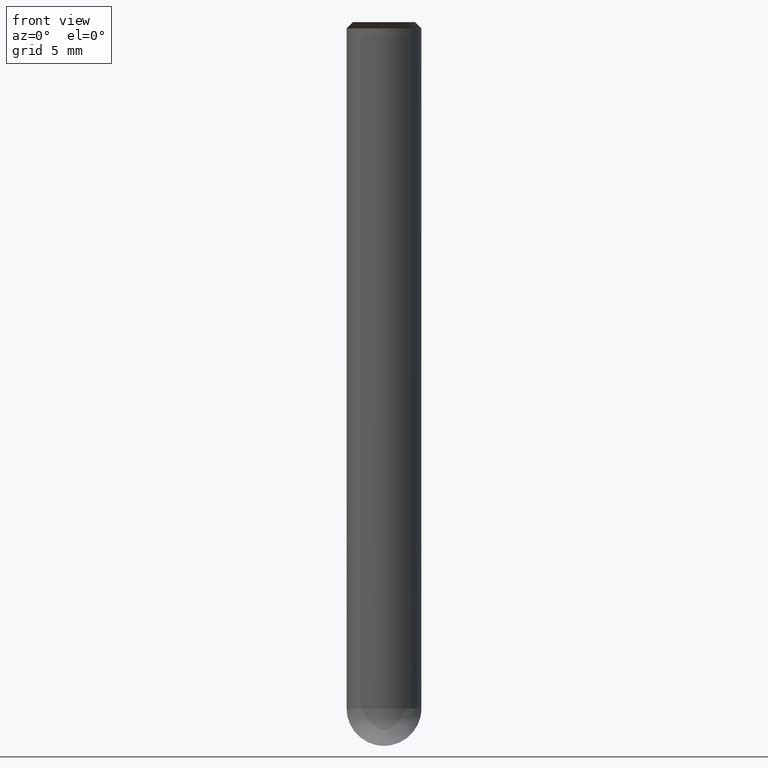
[diagram: clean part render]
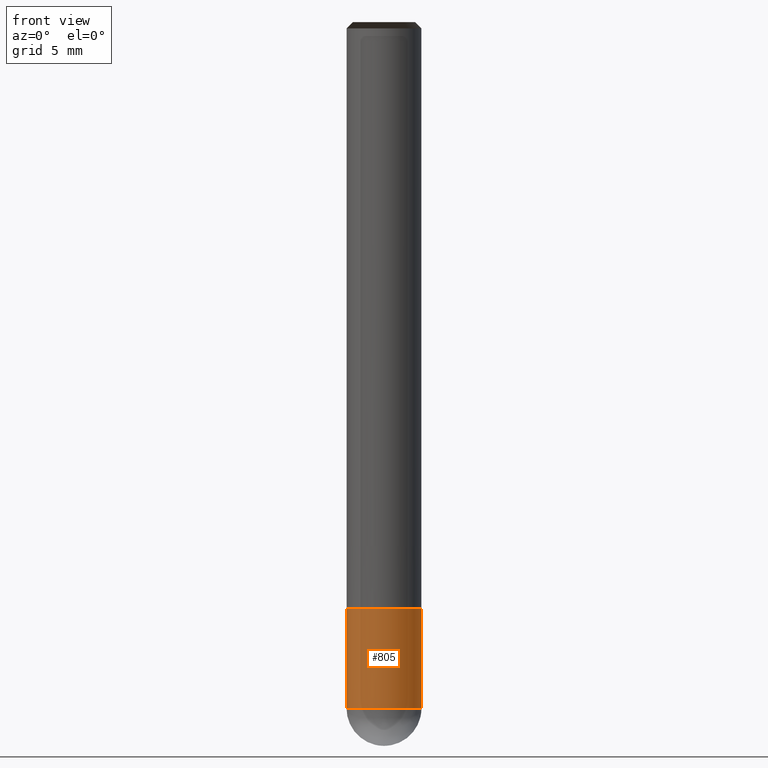
[diagram: same view with one face highlighted and labeled with its STEP entity id]
A machine part, front view. The second image highlights one B-rep face of the part: STEP entity #805.
In plain terms, the highlighted face is a freeform B-spline surface patch.
Its self-contained STEP definition (entity closure, byte-faithful):
#666=CARTESIAN_POINT('',(3.0,0.0,-13.0));
#670=CARTESIAN_POINT('',(-3.0,0.0,-13.0));
#671=CARTESIAN_POINT('',(3.0,0.0,-5.0));
#675=CARTESIAN_POINT('',(-3.0,0.0,-5.0));
#680=CARTESIAN_POINT('',(-3.0,-3.0,-13.0));
#681=CARTESIAN_POINT('',(0.0,-3.0,-13.0));
#682=CARTESIAN_POINT('',(3.0,-3.0,-13.0));
#683=CARTESIAN_POINT('',(-3.0,-3.0,-5.0));
#684=CARTESIAN_POINT('',(0.0,-3.0,-5.0));
#685=CARTESIAN_POINT('',(3.0,-3.0,-5.0));
#786=(
BOUNDED_SURFACE()
B_SPLINE_SURFACE(1,2,(
(#670,#680,#681,#682,#666),
(#675,#683,#684,#685,#671)
), .UNSPECIFIED.,.F.,.F.,.F.)
B_SPLINE_SURFACE_WITH_KNOTS((2,2),(3,2,3),(
0.0,1.0),(
0.0,0.5,1.0), .UNSPECIFIED.)
GEOMETRIC_REPRESENTATION_ITEM()
RATIONAL_B_SPLINE_SURFACE(((1.0,0.707106781187,1.0,0.707106781187,1.0),
(1.0,0.707106781187,1.0,0.707106781187,1.0)
))
REPRESENTATION_ITEM('')
SURFACE()
);
#787=(
BOUNDED_CURVE()
B_SPLINE_CURVE(2,(#666,#682,#681,#680,#670),.UNSPECIFIED.,.F.,.F.)
B_SPLINE_CURVE_WITH_KNOTS((3,2,3),
(0.0,0.5,1.0),.UNSPECIFIED.)
CURVE()
GEOMETRIC_REPRESENTATION_ITEM()
RATIONAL_B_SPLINE_CURVE((1.0,0.707106781187,1.0,0.707106781187,1.0))
REPRESENTATION_ITEM('')
);
#788=(
BOUNDED_CURVE()
B_SPLINE_CURVE(1,(#670,#675),.UNSPECIFIED.,.F.,.F.)
B_SPLINE_CURVE_WITH_KNOTS((2,2),
(0.0,1.0),.UNSPECIFIED.)
CURVE()
GEOMETRIC_REPRESENTATION_ITEM()
RATIONAL_B_SPLINE_CURVE((1.0,1.0))
REPRESENTATION_ITEM('')
);
#789=(
BOUNDED_CURVE()
B_SPLINE_CURVE(2,(#675,#683,#684,#685,#671),.UNSPECIFIED.,.F.,.F.)
B_SPLINE_CURVE_WITH_KNOTS((3,2,3),
(0.0,0.5,1.0),.UNSPECIFIED.)
CURVE()
GEOMETRIC_REPRESENTATION_ITEM()
RATIONAL_B_SPLINE_CURVE((1.0,0.707106781187,1.0,0.707106781187,1.0))
REPRESENTATION_ITEM('')
);
#790=(
BOUNDED_CURVE()
B_SPLINE_CURVE(1,(#671,#666),.UNSPECIFIED.,.F.,.F.)
B_SPLINE_CURVE_WITH_KNOTS((2,2),
(0.0,1.0),.UNSPECIFIED.)
CURVE()
GEOMETRIC_REPRESENTATION_ITEM()
RATIONAL_B_SPLINE_CURVE((1.0,1.0))
REPRESENTATION_ITEM('')
);
#791=VERTEX_POINT('',#666);
#792=VERTEX_POINT('',#670);
#793=VERTEX_POINT('',#671);
#794=VERTEX_POINT('',#675);
#795=EDGE_CURVE('',#791,#792,#787,.T.);
#796=EDGE_CURVE('',#792,#794,#788,.T.);
#797=EDGE_CURVE('',#794,#793,#789,.T.);
#798=EDGE_CURVE('',#793,#791,#790,.T.);
#799=ORIENTED_EDGE('',*,*,#795,.T.);
#800=ORIENTED_EDGE('',*,*,#796,.T.);
#801=ORIENTED_EDGE('',*,*,#797,.T.);
#802=ORIENTED_EDGE('',*,*,#798,.T.);
#803=EDGE_LOOP('',(#799,#800,#801,#802));
#804=FACE_OUTER_BOUND('',#803,.T.);
#805=ADVANCED_FACE('',(#804),#786,.T.);